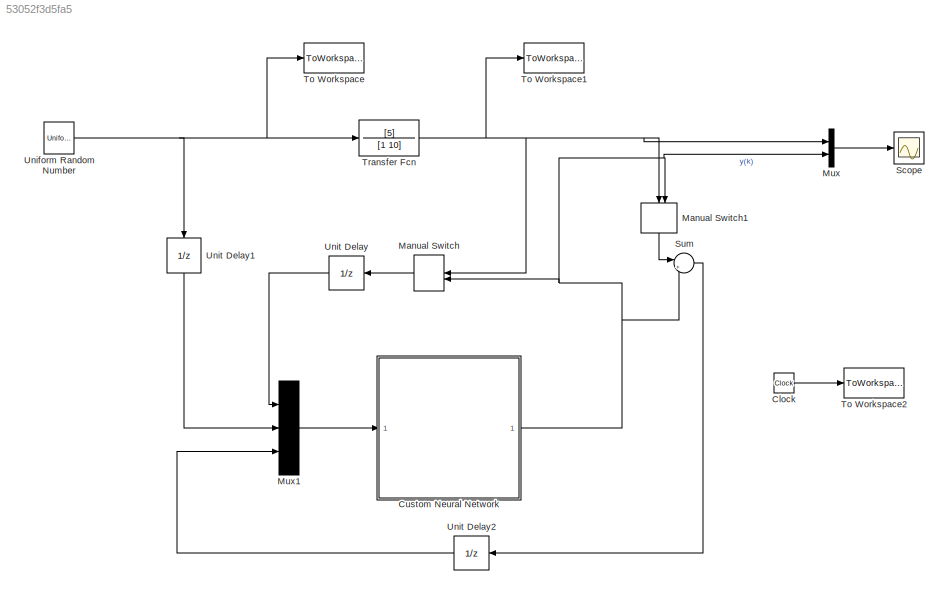
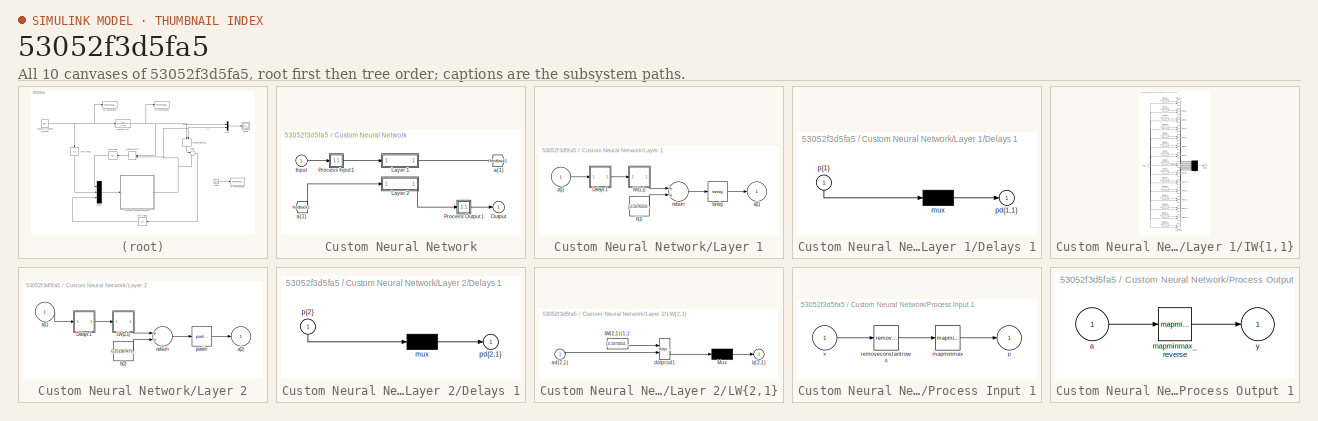
[diagram: thumbnail index - all 10 canvases of the model, root first then tree order]
MODEL slx_53052f3d5fa5
KIND model
CONFIG AbsTol = auto
CONFIG FixedStep = auto
CONFIG MaxStep = auto
CONFIG MinStep = auto
CONFIG RelTol = 1e-3
CONFIG SampleTimeConstraint = Unconstrained
CONFIG Solver = VariableStepAuto
CONFIG SolverMode = Auto
CONFIG SolverName = VariableStepAuto
CONFIG StartTime = 0.0
CONFIG StopTime = 10.0
BLOCK [Clock] Clock
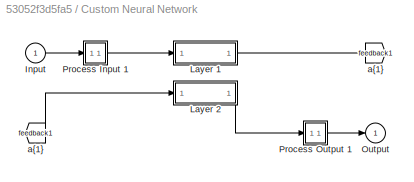
BLOCK [SubSystem] Custom Neural Network
  Ports = [1, 1]
  RequestExecContextInheritance = off
  Variant = off
BLOCK [From] Custom Neural Network/ a{1} 
  GotoTag = feedback1
BLOCK [Inport] Custom Neural Network/Input
  IconDisplay = Port number
  PortDimensions = 3
  SampleTime = 0.01
BLOCK [SubSystem] Custom Neural Network/Layer 1
  Ports = [1, 1]
  RequestExecContextInheritance = off
  Variant = off
BLOCK [SubSystem] Custom Neural Network/Layer 1/Delays 1
  Ports = [1, 1]
  RequestExecContextInheritance = off
  Variant = off
BLOCK [Mux] Custom Neural Network/Layer 1/Delays 1/mux
  Inputs = 1
  Ports = [1, 1]
BLOCK [Outport] Custom Neural Network/Layer 1/Delays 1/pd{1,1}
  IconDisplay = Port number
BLOCK [Inport] Custom Neural Network/Layer 1/Delays 1/p{1}
  IconDisplay = Port number
  PortDimensions = 2
  SampleTime = 0.01
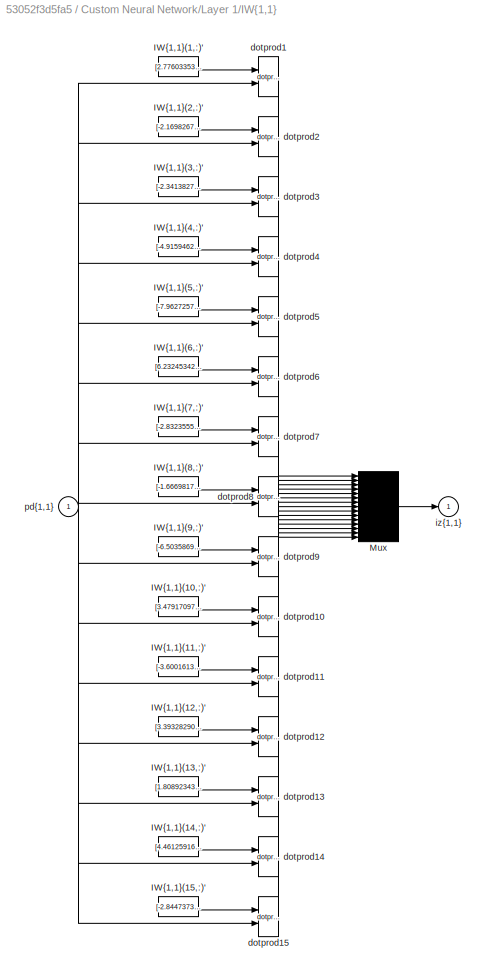
BLOCK [SubSystem] Custom Neural Network/Layer 1/IW{1,1}
  Ports = [1, 1]
  RequestExecContextInheritance = off
  Variant = off
BLOCK [Constant] Custom Neural Network/Layer 1/IW{1,1}/IW{1,1}(1,:)'
  Value = [2.7760335394145876;-5.62636884374131]
BLOCK [Constant] Custom Neural Network/Layer 1/IW{1,1}/IW{1,1}(10,:)'
  Value = [3.4791709769226098;-15.559454793431041]
BLOCK [Constant] Custom Neural Network/Layer 1/IW{1,1}/IW{1,1}(11,:)'
  Value = [-3.6001613206587049;14.600401478405136]
BLOCK [Constant] Custom Neural Network/Layer 1/IW{1,1}/IW{1,1}(12,:)'
  Value = [3.3932829066047487;-7.3863315675897567]
BLOCK [Constant] Custom Neural Network/Layer 1/IW{1,1}/IW{1,1}(13,:)'
  Value = [1.8089234348453616;3.3153290433528193]
BLOCK [Constant] Custom Neural Network/Layer 1/IW{1,1}/IW{1,1}(14,:)'
  Value = [4.4612591614772121;7.5808223984791399]
BLOCK [Constant] Custom Neural Network/Layer 1/IW{1,1}/IW{1,1}(15,:)'
  Value = [-2.8447373944933294;6.3284745869426882]
BLOCK [Constant] Custom Neural Network/Layer 1/IW{1,1}/IW{1,1}(2,:)'
  Value = [-2.1698267969820626;-10.030973584174514]
BLOCK [Constant] Custom Neural Network/Layer 1/IW{1,1}/IW{1,1}(3,:)'
  Value = [-2.3413827477425855;2.0087447448254143]
BLOCK [Constant] Custom Neural Network/Layer 1/IW{1,1}/IW{1,1}(4,:)'
  Value = [-4.9159462742732671;-11.300881865977956]
BLOCK [Constant] Custom Neural Network/Layer 1/IW{1,1}/IW{1,1}(5,:)'
  Value = [-7.9627257834150669;7.3005022191709612]
BLOCK [Constant] Custom Neural Network/Layer 1/IW{1,1}/IW{1,1}(6,:)'
  Value = [6.2324534261746853;1.4813500563856696]
BLOCK [Constant] Custom Neural Network/Layer 1/IW{1,1}/IW{1,1}(7,:)'
  Value = [-2.832355583106605;6.751631938201748]
BLOCK [Constant] Custom Neural Network/Layer 1/IW{1,1}/IW{1,1}(8,:)'
  Value = [-1.666981729726579;-5.3973199763890785]
BLOCK [Constant] Custom Neural Network/Layer 1/IW{1,1}/IW{1,1}(9,:)'
  Value = [-6.503586912231623;3.2364582897818854]
BLOCK [Mux] Custom Neural Network/Layer 1/IW{1,1}/Mux
  Inputs = 15
  Ports = [15, 1]
BLOCK [Reference] Custom Neural Network/Layer 1/IW{1,1}/dotprod1  REF=neural/Weight Functions/dotprod
  Ports = [2, 1]
  SourceBlock = neural/Weight Functions/dotprod
  SourceType = DOTPROD
BLOCK [Reference] Custom Neural Network/Layer 1/IW{1,1}/dotprod10  REF=neural/Weight Functions/dotprod
  Ports = [2, 1]
  SourceBlock = neural/Weight Functions/dotprod
  SourceType = DOTPROD
BLOCK [Reference] Custom Neural Network/Layer 1/IW{1,1}/dotprod11  REF=neural/Weight Functions/dotprod
  Ports = [2, 1]
  SourceBlock = neural/Weight Functions/dotprod
  SourceType = DOTPROD
BLOCK [Reference] Custom Neural Network/Layer 1/IW{1,1}/dotprod12  REF=neural/Weight Functions/dotprod
  Ports = [2, 1]
  SourceBlock = neural/Weight Functions/dotprod
  SourceType = DOTPROD
BLOCK [Reference] Custom Neural Network/Layer 1/IW{1,1}/dotprod13  REF=neural/Weight Functions/dotprod
  Ports = [2, 1]
  SourceBlock = neural/Weight Functions/dotprod
  SourceType = DOTPROD
BLOCK [Reference] Custom Neural Network/Layer 1/IW{1,1}/dotprod14  REF=neural/Weight Functions/dotprod
  Ports = [2, 1]
  SourceBlock = neural/Weight Functions/dotprod
  SourceType = DOTPROD
BLOCK [Reference] Custom Neural Network/Layer 1/IW{1,1}/dotprod15  REF=neural/Weight Functions/dotprod
  Ports = [2, 1]
  SourceBlock = neural/Weight Functions/dotprod
  SourceType = DOTPROD
BLOCK [Reference] Custom Neural Network/Layer 1/IW{1,1}/dotprod2  REF=neural/Weight Functions/dotprod
  Ports = [2, 1]
  SourceBlock = neural/Weight Functions/dotprod
  SourceType = DOTPROD
BLOCK [Reference] Custom Neural Network/Layer 1/IW{1,1}/dotprod3  REF=neural/Weight Functions/dotprod
  Ports = [2, 1]
  SourceBlock = neural/Weight Functions/dotprod
  SourceType = DOTPROD
BLOCK [Reference] Custom Neural Network/Layer 1/IW{1,1}/dotprod4  REF=neural/Weight Functions/dotprod
  Ports = [2, 1]
  SourceBlock = neural/Weight Functions/dotprod
  SourceType = DOTPROD
BLOCK [Reference] Custom Neural Network/Layer 1/IW{1,1}/dotprod5  REF=neural/Weight Functions/dotprod
  Ports = [2, 1]
  SourceBlock = neural/Weight Functions/dotprod
  SourceType = DOTPROD
BLOCK [Reference] Custom Neural Network/Layer 1/IW{1,1}/dotprod6  REF=neural/Weight Functions/dotprod
  Ports = [2, 1]
  SourceBlock = neural/Weight Functions/dotprod
  SourceType = DOTPROD
BLOCK [Reference] Custom Neural Network/Layer 1/IW{1,1}/dotprod7  REF=neural/Weight Functions/dotprod
  Ports = [2, 1]
  SourceBlock = neural/Weight Functions/dotprod
  SourceType = DOTPROD
BLOCK [Reference] Custom Neural Network/Layer 1/IW{1,1}/dotprod8  REF=neural/Weight Functions/dotprod
  Ports = [2, 1]
  SourceBlock = neural/Weight Functions/dotprod
  SourceType = DOTPROD
BLOCK [Reference] Custom Neural Network/Layer 1/IW{1,1}/dotprod9  REF=neural/Weight Functions/dotprod
  Ports = [2, 1]
  SourceBlock = neural/Weight Functions/dotprod
  SourceType = DOTPROD
BLOCK [Outport] Custom Neural Network/Layer 1/IW{1,1}/iz{1,1}
  IconDisplay = Port number
BLOCK [Inport] Custom Neural Network/Layer 1/IW{1,1}/pd{1,1}
  IconDisplay = Port number
  PortDimensions = 2
  SampleTime = 0.01
BLOCK [Outport] Custom Neural Network/Layer 1/a{1}
  IconDisplay = Port number
  InitialOutput = [0;0;0;0;0;0;0;0;0;0;0;0;0;0;0]
BLOCK [Constant] Custom Neural Network/Layer 1/b{1}
  Value = [-2.5676503806478368;7.7639965459639315;2.0783670374880878;9.0229321836409166;2.2163940369851138;-2.6510555703640479;2.1363905489009118;0.85419359041446574;-2.0014192119426353;5.8772734102625455;-5.4833425444529107;5.0819856481302432;2.4704813651548871;6.352329866857561;-4.3110298246534047]
BLOCK [Sum] Custom Neural Network/Layer 1/netsum
  Inputs = 2
  Ports = [2, 1]
BLOCK [Inport] Custom Neural Network/Layer 1/p{1}
  IconDisplay = Port number
  PortDimensions = 2
  SampleTime = 0.01
BLOCK [Reference] Custom Neural Network/Layer 1/tansig  REF=neural/Transfer Functions/tansig
  Ports = [1, 1]
  SourceBlock = neural/Transfer Functions/tansig
  SourceType = TANSIG
BLOCK [SubSystem] Custom Neural Network/Layer 2
  Ports = [1, 1]
  RequestExecContextInheritance = off
  Variant = off
BLOCK [SubSystem] Custom Neural Network/Layer 2/Delays 1
  Ports = [1, 1]
  RequestExecContextInheritance = off
  Variant = off
BLOCK [Mux] Custom Neural Network/Layer 2/Delays 1/mux
  Inputs = 1
  Ports = [1, 1]
BLOCK [Outport] Custom Neural Network/Layer 2/Delays 1/pd{2,1}
  IconDisplay = Port number
BLOCK [Inport] Custom Neural Network/Layer 2/Delays 1/p{2}
  IconDisplay = Port number
  PortDimensions = 15
  SampleTime = 0.01
BLOCK [SubSystem] Custom Neural Network/Layer 2/LW{2,1}
  Ports = [1, 1]
  RequestExecContextInheritance = off
  Variant = off
BLOCK [Constant] Custom Neural Network/Layer 2/LW{2,1}/IW{2,1}(1,:)'
  Value = [-0.19730540180406236;-1.5465743382092576;-0.45426564932234814;1.2328281378104533;-0.10076085706468442;0.030370408498722423;-0.14487901596106845;-0.20376124882535751;-0.13829088027167891;-1.9176402442488212;-2.038550222319985;1.3985120369339317;0.61935151224613416;-0.33061556513279733;1.2807631138682758]
BLOCK [Mux] Custom Neural Network/Layer 2/LW{2,1}/Mux
  Inputs = 1
  Ports = [1, 1]
BLOCK [Inport] Custom Neural Network/Layer 2/LW{2,1}/ad{2,1}
  IconDisplay = Port number
  PortDimensions = 15
  SampleTime = 0.01
BLOCK [Reference] Custom Neural Network/Layer 2/LW{2,1}/dotprod1  REF=neural/Weight Functions/dotprod
  Ports = [2, 1]
  SourceBlock = neural/Weight Functions/dotprod
  SourceType = DOTPROD
BLOCK [Outport] Custom Neural Network/Layer 2/LW{2,1}/lz{2,1}
  IconDisplay = Port number
BLOCK [Inport] Custom Neural Network/Layer 2/a{1} 
  IconDisplay = Port number
  PortDimensions = 15
  SampleTime = 0.01
BLOCK [Outport] Custom Neural Network/Layer 2/a{2}
  IconDisplay = Port number
  InitialOutput = 0
BLOCK [Constant] Custom Neural Network/Layer 2/b{2}
  Value = 0.25138747301681341
BLOCK [Sum] Custom Neural Network/Layer 2/netsum
  Inputs = 2
  Ports = [2, 1]
BLOCK [Reference] Custom Neural Network/Layer 2/purelin  REF=neural/Transfer Functions/purelin
  Ports = [1, 1]
  SourceBlock = neural/Transfer Functions/purelin
  SourceType = PURELIN
BLOCK [Outport] Custom Neural Network/Output
  IconDisplay = Port number
  InitialOutput = 0
BLOCK [SubSystem] Custom Neural Network/Process Input 1
  Ports = [1, 1]
  RequestExecContextInheritance = off
  Variant = off
BLOCK [Reference] Custom Neural Network/Process Input 1/mapminmax  REF=neural/Processing Functions/mapminmax
  Ports = [1, 1]
  SourceBlock = neural/Processing Functions/mapminmax
  SourceType = MAPMINMAX Preprocess
BLOCK [Outport] Custom Neural Network/Process Input 1/p
  IconDisplay = Port number
  PortDimensions = 2
  SampleTime = 0.01
BLOCK [Reference] Custom Neural Network/Process Input 1/removeconstantrows  REF=neural/Processing Functions/removeconstantrows
  Ports = [1, 1]
  SourceBlock = neural/Processing Functions/removeconstantrows
  SourceType = REMOVECONSTANTROWS Process
BLOCK [Inport] Custom Neural Network/Process Input 1/x
  IconDisplay = Port number
  PortDimensions = 3
  SampleTime = 0.01
BLOCK [SubSystem] Custom Neural Network/Process Output 1
  Ports = [1, 1]
  RequestExecContextInheritance = off
  Variant = off
BLOCK [Inport] Custom Neural Network/Process Output 1/a
  IconDisplay = Port number
  PortDimensions = 1
  SampleTime = 0.01
BLOCK [Reference] Custom Neural Network/Process Output 1/mapminmax_reverse  REF=neural/Processing Functions/mapminmax_reverse
  Ports = [1, 1]
  SourceBlock = neural/Processing Functions/mapminmax_reverse
  SourceType = MAPMINMAX Reverse Process
BLOCK [Outport] Custom Neural Network/Process Output 1/y
  IconDisplay = Port number
  PortDimensions = 1
  SampleTime = 0.01
BLOCK [Goto] Custom Neural Network/a{1}
  GotoTag = feedback1
BLOCK [ManualSwitch] Manual Switch
  CurrentSetting = 0
BLOCK [ManualSwitch] Manual Switch1
BLOCK [Mux] Mux
  DisplayOption = bar
  Inputs = 2
  Ports = [2, 1]
BLOCK [Mux] Mux1
  DisplayOption = bar
  Inputs = 3
  Ports = [3, 1]
BLOCK [Scope] Scope
  Ports = [1]
  ScopeSpecificationString = C++SS(StrPVP('SaveName','ScopeData'))
BLOCK [Sum] Sum
  IconShape = round
  InputSameDT = off
  Inputs = |+-
  OutDataTypeStr = Inherit: Inherit via internal rule
  Ports = [2, 1]
  SaturateOnIntegerOverflow = off
BLOCK [ToWorkspace] To Workspace
  FixptAsFi = on
  MaxDataPoints = inf
  Ports = [1]
  SampleTime = 0.01
  Save2DSignal = 3-D array (concatenate along third dimension)
  VariableName = Entrada
BLOCK [ToWorkspace] To Workspace1
  FixptAsFi = on
  MaxDataPoints = inf
  Ports = [1]
  SampleTime = 0.01
  Save2DSignal = 3-D array (concatenate along third dimension)
  VariableName = Salida
BLOCK [ToWorkspace] To Workspace2
  FixptAsFi = on
  MaxDataPoints = inf
  Ports = [1]
  SampleTime = 0.01
  Save2DSignal = 3-D array (concatenate along third dimension)
  VariableName = Tiempo
BLOCK [TransferFcn] Transfer Fcn
  Denominator = [1 10]
  Numerator = [5]
BLOCK [UniformRandomNumber] Uniform Random Number
  Maximum = 5
  Minimum = 0
  SampleTime = 0.5
BLOCK [UnitDelay] Unit Delay
  InputProcessing = Elements as channels (sample based)
  SampleTime = 0.01
BLOCK [UnitDelay] Unit Delay1
  InputProcessing = Elements as channels (sample based)
  SampleTime = 0.01
BLOCK [UnitDelay] Unit Delay2
  InputProcessing = Elements as channels (sample based)
  SampleTime = 0.01
LINE Clock:1 -> To Workspace2:1
LINE Custom Neural Network/ a{1} :1 -> Custom Neural Network/Layer 2:1
LINE Custom Neural Network/Input:1 -> Custom Neural Network/Process Input 1:1
LINE Custom Neural Network/Layer 1/Delays 1/mux:1 -> Custom Neural Network/Layer 1/Delays 1/pd{1,1}:1
LINE Custom Neural Network/Layer 1/Delays 1/p{1}:1 -> Custom Neural Network/Layer 1/Delays 1/mux:1
LINE Custom Neural Network/Layer 1/Delays 1:1 -> Custom Neural Network/Layer 1/IW{1,1}:1
LINE Custom Neural Network/Layer 1/IW{1,1}/IW{1,1}(1,:)':1 -> Custom Neural Network/Layer 1/IW{1,1}/dotprod1:1
LINE Custom Neural Network/Layer 1/IW{1,1}/IW{1,1}(10,:)':1 -> Custom Neural Network/Layer 1/IW{1,1}/dotprod10:1
LINE Custom Neural Network/Layer 1/IW{1,1}/IW{1,1}(11,:)':1 -> Custom Neural Network/Layer 1/IW{1,1}/dotprod11:1
LINE Custom Neural Network/Layer 1/IW{1,1}/IW{1,1}(12,:)':1 -> Custom Neural Network/Layer 1/IW{1,1}/dotprod12:1
LINE Custom Neural Network/Layer 1/IW{1,1}/IW{1,1}(13,:)':1 -> Custom Neural Network/Layer 1/IW{1,1}/dotprod13:1
LINE Custom Neural Network/Layer 1/IW{1,1}/IW{1,1}(14,:)':1 -> Custom Neural Network/Layer 1/IW{1,1}/dotprod14:1
LINE Custom Neural Network/Layer 1/IW{1,1}/IW{1,1}(15,:)':1 -> Custom Neural Network/Layer 1/IW{1,1}/dotprod15:1
LINE Custom Neural Network/Layer 1/IW{1,1}/IW{1,1}(2,:)':1 -> Custom Neural Network/Layer 1/IW{1,1}/dotprod2:1
LINE Custom Neural Network/Layer 1/IW{1,1}/IW{1,1}(3,:)':1 -> Custom Neural Network/Layer 1/IW{1,1}/dotprod3:1
LINE Custom Neural Network/Layer 1/IW{1,1}/IW{1,1}(4,:)':1 -> Custom Neural Network/Layer 1/IW{1,1}/dotprod4:1
LINE Custom Neural Network/Layer 1/IW{1,1}/IW{1,1}(5,:)':1 -> Custom Neural Network/Layer 1/IW{1,1}/dotprod5:1
LINE Custom Neural Network/Layer 1/IW{1,1}/IW{1,1}(6,:)':1 -> Custom Neural Network/Layer 1/IW{1,1}/dotprod6:1
LINE Custom Neural Network/Layer 1/IW{1,1}/IW{1,1}(7,:)':1 -> Custom Neural Network/Layer 1/IW{1,1}/dotprod7:1
LINE Custom Neural Network/Layer 1/IW{1,1}/IW{1,1}(8,:)':1 -> Custom Neural Network/Layer 1/IW{1,1}/dotprod8:1
LINE Custom Neural Network/Layer 1/IW{1,1}/IW{1,1}(9,:)':1 -> Custom Neural Network/Layer 1/IW{1,1}/dotprod9:1
LINE Custom Neural Network/Layer 1/IW{1,1}/Mux:1 -> Custom Neural Network/Layer 1/IW{1,1}/iz{1,1}:1
LINE Custom Neural Network/Layer 1/IW{1,1}/dotprod10:1 -> Custom Neural Network/Layer 1/IW{1,1}/Mux:10
LINE Custom Neural Network/Layer 1/IW{1,1}/dotprod11:1 -> Custom Neural Network/Layer 1/IW{1,1}/Mux:11
LINE Custom Neural Network/Layer 1/IW{1,1}/dotprod12:1 -> Custom Neural Network/Layer 1/IW{1,1}/Mux:12
LINE Custom Neural Network/Layer 1/IW{1,1}/dotprod13:1 -> Custom Neural Network/Layer 1/IW{1,1}/Mux:13
LINE Custom Neural Network/Layer 1/IW{1,1}/dotprod14:1 -> Custom Neural Network/Layer 1/IW{1,1}/Mux:14
LINE Custom Neural Network/Layer 1/IW{1,1}/dotprod15:1 -> Custom Neural Network/Layer 1/IW{1,1}/Mux:15
LINE Custom Neural Network/Layer 1/IW{1,1}/dotprod1:1 -> Custom Neural Network/Layer 1/IW{1,1}/Mux:1
LINE Custom Neural Network/Layer 1/IW{1,1}/dotprod2:1 -> Custom Neural Network/Layer 1/IW{1,1}/Mux:2
LINE Custom Neural Network/Layer 1/IW{1,1}/dotprod3:1 -> Custom Neural Network/Layer 1/IW{1,1}/Mux:3
LINE Custom Neural Network/Layer 1/IW{1,1}/dotprod4:1 -> Custom Neural Network/Layer 1/IW{1,1}/Mux:4
LINE Custom Neural Network/Layer 1/IW{1,1}/dotprod5:1 -> Custom Neural Network/Layer 1/IW{1,1}/Mux:5
LINE Custom Neural Network/Layer 1/IW{1,1}/dotprod6:1 -> Custom Neural Network/Layer 1/IW{1,1}/Mux:6
LINE Custom Neural Network/Layer 1/IW{1,1}/dotprod7:1 -> Custom Neural Network/Layer 1/IW{1,1}/Mux:7
LINE Custom Neural Network/Layer 1/IW{1,1}/dotprod8:1 -> Custom Neural Network/Layer 1/IW{1,1}/Mux:8
LINE Custom Neural Network/Layer 1/IW{1,1}/dotprod9:1 -> Custom Neural Network/Layer 1/IW{1,1}/Mux:9
NET Custom Neural Network/Layer 1/IW{1,1}/pd{1,1}:1 -> Custom Neural Network/Layer 1/IW{1,1}/dotprod10:2, Custom Neural Network/Layer 1/IW{1,1}/dotprod11:2, Custom Neural Network/Layer 1/IW{1,1}/dotprod12:2, Custom Neural Network/Layer 1/IW{1,1}/dotprod13:2, Custom Neural Network/Layer 1/IW{1,1}/dotprod14:2, Custom Neural Network/Layer 1/IW{1,1}/dotprod15:2, Custom Neural Network/Layer 1/IW{1,1}/dotprod1:2, Custom Neural Network/Layer 1/IW{1,1}/dotprod2:2, Custom Neural Network/Layer 1/IW{1,1}/dotprod3:2, Custom Neural Network/Layer 1/IW{1,1}/dotprod4:2, Custom Neural Network/Layer 1/IW{1,1}/dotprod5:2, Custom Neural Network/Layer 1/IW{1,1}/dotprod6:2, Custom Neural Network/Layer 1/IW{1,1}/dotprod7:2, Custom Neural Network/Layer 1/IW{1,1}/dotprod8:2, Custom Neural Network/Layer 1/IW{1,1}/dotprod9:2
LINE Custom Neural Network/Layer 1/IW{1,1}:1 -> Custom Neural Network/Layer 1/netsum:1
LINE Custom Neural Network/Layer 1/b{1}:1 -> Custom Neural Network/Layer 1/netsum:2
LINE Custom Neural Network/Layer 1/netsum:1 -> Custom Neural Network/Layer 1/tansig:1
LINE Custom Neural Network/Layer 1/p{1}:1 -> Custom Neural Network/Layer 1/Delays 1:1
LINE Custom Neural Network/Layer 1/tansig:1 -> Custom Neural Network/Layer 1/a{1}:1
LINE Custom Neural Network/Layer 1:1 -> Custom Neural Network/a{1}:1
LINE Custom Neural Network/Layer 2/Delays 1/mux:1 -> Custom Neural Network/Layer 2/Delays 1/pd{2,1}:1
LINE Custom Neural Network/Layer 2/Delays 1/p{2}:1 -> Custom Neural Network/Layer 2/Delays 1/mux:1
LINE Custom Neural Network/Layer 2/Delays 1:1 -> Custom Neural Network/Layer 2/LW{2,1}:1
LINE Custom Neural Network/Layer 2/LW{2,1}/IW{2,1}(1,:)':1 -> Custom Neural Network/Layer 2/LW{2,1}/dotprod1:1
LINE Custom Neural Network/Layer 2/LW{2,1}/Mux:1 -> Custom Neural Network/Layer 2/LW{2,1}/lz{2,1}:1
LINE Custom Neural Network/Layer 2/LW{2,1}/ad{2,1}:1 -> Custom Neural Network/Layer 2/LW{2,1}/dotprod1:2
LINE Custom Neural Network/Layer 2/LW{2,1}/dotprod1:1 -> Custom Neural Network/Layer 2/LW{2,1}/Mux:1
LINE Custom Neural Network/Layer 2/LW{2,1}:1 -> Custom Neural Network/Layer 2/netsum:1
LINE Custom Neural Network/Layer 2/a{1} :1 -> Custom Neural Network/Layer 2/Delays 1:1
LINE Custom Neural Network/Layer 2/b{2}:1 -> Custom Neural Network/Layer 2/netsum:2
LINE Custom Neural Network/Layer 2/netsum:1 -> Custom Neural Network/Layer 2/purelin:1
LINE Custom Neural Network/Layer 2/purelin:1 -> Custom Neural Network/Layer 2/a{2}:1
LINE Custom Neural Network/Layer 2:1 -> Custom Neural Network/Process Output 1:1
LINE Custom Neural Network/Process Input 1/mapminmax:1 -> Custom Neural Network/Process Input 1/p:1
LINE Custom Neural Network/Process Input 1/removeconstantrows:1 -> Custom Neural Network/Process Input 1/mapminmax:1
LINE Custom Neural Network/Process Input 1/x:1 -> Custom Neural Network/Process Input 1/removeconstantrows:1
LINE Custom Neural Network/Process Input 1:1 -> Custom Neural Network/Layer 1:1
LINE Custom Neural Network/Process Output 1/a:1 -> Custom Neural Network/Process Output 1/mapminmax_reverse:1
LINE Custom Neural Network/Process Output 1/mapminmax_reverse:1 -> Custom Neural Network/Process Output 1/y:1
LINE Custom Neural Network/Process Output 1:1 -> Custom Neural Network/Output:1
NET Custom Neural Network:1 -> Manual Switch1:2, Manual Switch:2, Mux:2, Sum:2
LINE Manual Switch1:1 -> Sum:1
LINE Manual Switch:1 -> Unit Delay:1
LINE Mux1:1 -> Custom Neural Network:1
LINE Mux:1 -> Scope:1
LINE Sum:1 -> Unit Delay2:1
NET Transfer Fcn:1 -> Manual Switch1:1, Manual Switch:1, Mux:1, To Workspace1:1
NET Uniform Random Number:1 -> To Workspace:1, Transfer Fcn:1, Unit Delay1:1
LINE Unit Delay1:1 -> Mux1:2
LINE Unit Delay2:1 -> Mux1:3
LINE Unit Delay:1 -> Mux1:1
note: NET lines group one-source signal fan-out (src -> all destinations, sorted); 1:1 wires keep LINE
